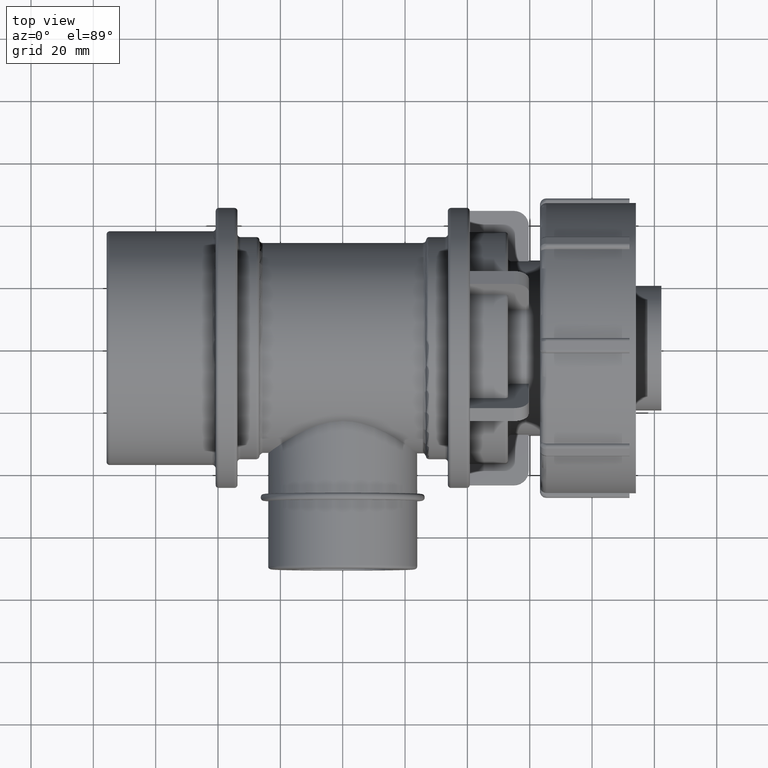
[diagram: clean part render]
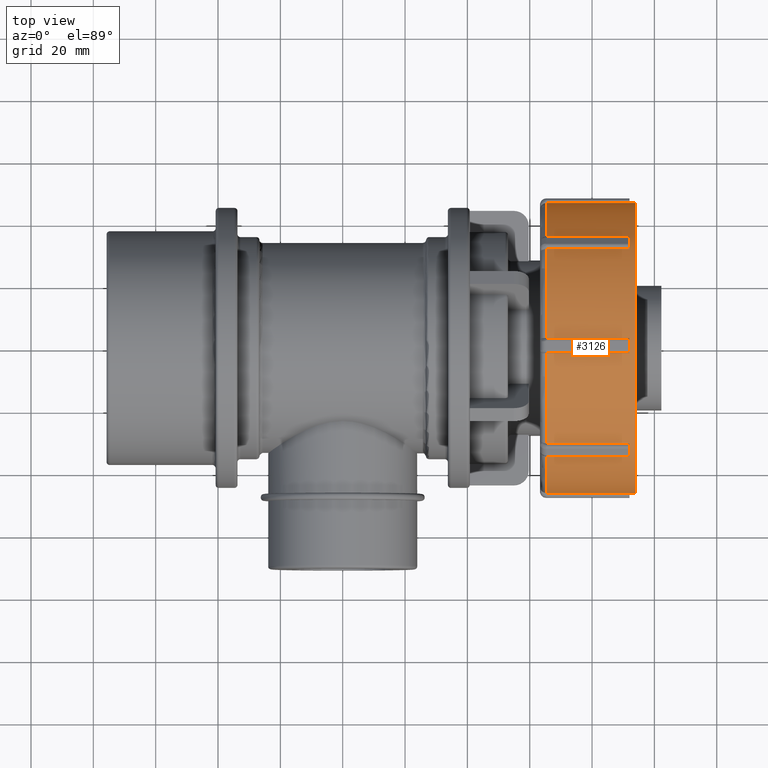
[diagram: same view with one face highlighted and labeled with its STEP entity id]
A machine part, top view. The second image highlights one B-rep face of the part: STEP entity #3126.
In plain terms, the highlighted cylindrical surface (bore or boss wall) has radius 46.56 mm, axis along (1, 0, 0).
Its self-contained STEP definition (entity closure, byte-faithful):
#33=LINE('',#4805,#215);
#65=LINE('',#4991,#247);
#74=LINE('',#5113,#256);
#83=LINE('',#5235,#265);
#92=LINE('',#5357,#274);
#101=LINE('',#5479,#283);
#110=LINE('',#5601,#292);
#116=LINE('',#5676,#298);
#117=LINE('',#5685,#299);
#118=LINE('',#5694,#300);
#119=LINE('',#5703,#301);
#120=LINE('',#5712,#302);
#121=LINE('',#5721,#303);
#122=LINE('',#5736,#304);
#123=LINE('',#5743,#305);
#124=LINE('',#5747,#306);
#215=VECTOR('',#3750,26.7);
#247=VECTOR('',#3846,26.7);
#256=VECTOR('',#3899,26.7);
#265=VECTOR('',#3952,26.7);
#274=VECTOR('',#4005,26.7);
#283=VECTOR('',#4058,26.7);
#292=VECTOR('',#4111,26.7);
#298=VECTOR('',#4145,26.7);
#299=VECTOR('',#4148,26.7);
#300=VECTOR('',#4151,26.7);
#301=VECTOR('',#4154,26.7);
#302=VECTOR('',#4157,26.7);
#303=VECTOR('',#4160,26.7);
#304=VECTOR('',#4175,26.7);
#305=VECTOR('',#4182,26.7);
#306=VECTOR('',#4185,26.7);
#548=CIRCLE('',#3296,46.56);
#572=CIRCLE('',#3328,46.56);
#587=CIRCLE('',#3350,46.56);
#602=CIRCLE('',#3372,46.56);
#617=CIRCLE('',#3394,46.56);
#632=CIRCLE('',#3416,46.56);
#647=CIRCLE('',#3438,46.56);
#654=CIRCLE('',#3463,46.56);
#655=CIRCLE('',#3464,46.56);
#656=CIRCLE('',#3465,46.56);
#657=CIRCLE('',#3466,46.56);
#658=CIRCLE('',#3467,46.56);
#659=CIRCLE('',#3468,46.56);
#660=CIRCLE('',#3469,46.56);
#661=CIRCLE('',#3470,46.56);
#662=CIRCLE('',#3471,46.56);
#663=CIRCLE('',#3472,46.56);
#769=FACE_BOUND('',#1163,.T.);
#919=FACE_OUTER_BOUND('',#1162,.T.);
#1162=EDGE_LOOP('',(#2548));
#1163=EDGE_LOOP('',(#2549,#2550,#2551,#2552,#2553,#2554,#2555,#2556,#2557,
#2558,#2559,#2560,#2561,#2562,#2563,#2564,#2565,#2566,#2567,#2568,#2569,
#2570,#2571,#2572,#2573,#2574,#2575,#2576,#2577,#2578,#2579,#2580));
#1374=VERTEX_POINT('',#4802);
#1375=VERTEX_POINT('',#4804);
#1378=VERTEX_POINT('',#4817);
#1422=VERTEX_POINT('',#4988);
#1423=VERTEX_POINT('',#4990);
#1426=VERTEX_POINT('',#5003);
#1439=VERTEX_POINT('',#5110);
#1440=VERTEX_POINT('',#5112);
#1443=VERTEX_POINT('',#5125);
#1456=VERTEX_POINT('',#5232);
#1457=VERTEX_POINT('',#5234);
#1460=VERTEX_POINT('',#5247);
#1473=VERTEX_POINT('',#5354);
#1474=VERTEX_POINT('',#5356);
#1477=VERTEX_POINT('',#5369);
#1490=VERTEX_POINT('',#5476);
#1491=VERTEX_POINT('',#5478);
#1494=VERTEX_POINT('',#5491);
#1507=VERTEX_POINT('',#5598);
#1508=VERTEX_POINT('',#5600);
#1511=VERTEX_POINT('',#5613);
#1517=VERTEX_POINT('',#5669);
#1518=VERTEX_POINT('',#5678);
#1519=VERTEX_POINT('',#5687);
#1520=VERTEX_POINT('',#5696);
#1521=VERTEX_POINT('',#5705);
#1522=VERTEX_POINT('',#5714);
#1523=VERTEX_POINT('',#5729);
#1524=VERTEX_POINT('',#5738);
#1525=VERTEX_POINT('',#5740);
#1526=VERTEX_POINT('',#5742);
#1527=VERTEX_POINT('',#5744);
#1528=VERTEX_POINT('',#5746);
#1672=EDGE_CURVE('',#1375,#1374,#33,.T.);
#1677=EDGE_CURVE('',#1374,#1378,#548,.T.);
#1733=EDGE_CURVE('',#1423,#1422,#65,.T.);
#1738=EDGE_CURVE('',#1422,#1426,#572,.T.);
#1762=EDGE_CURVE('',#1440,#1439,#74,.T.);
#1767=EDGE_CURVE('',#1439,#1443,#587,.T.);
#1791=EDGE_CURVE('',#1457,#1456,#83,.T.);
#1796=EDGE_CURVE('',#1456,#1460,#602,.T.);
#1820=EDGE_CURVE('',#1474,#1473,#92,.T.);
#1825=EDGE_CURVE('',#1473,#1477,#617,.T.);
#1849=EDGE_CURVE('',#1491,#1490,#101,.T.);
#1854=EDGE_CURVE('',#1490,#1494,#632,.T.);
#1878=EDGE_CURVE('',#1508,#1507,#110,.T.);
#1883=EDGE_CURVE('',#1507,#1511,#647,.T.);
#1896=EDGE_CURVE('',#1378,#1517,#116,.T.);
#1898=EDGE_CURVE('',#1426,#1518,#117,.T.);
#1900=EDGE_CURVE('',#1443,#1519,#118,.T.);
#1902=EDGE_CURVE('',#1460,#1520,#119,.T.);
#1904=EDGE_CURVE('',#1477,#1521,#120,.T.);
#1906=EDGE_CURVE('',#1494,#1522,#121,.T.);
#1908=EDGE_CURVE('',#1511,#1523,#122,.T.);
#1909=EDGE_CURVE('',#1524,#1524,#654,.T.);
#1910=EDGE_CURVE('',#1525,#1517,#655,.T.);
#1911=EDGE_CURVE('',#1525,#1526,#123,.T.);
#1912=EDGE_CURVE('',#1526,#1527,#656,.T.);
#1913=EDGE_CURVE('',#1527,#1528,#124,.T.);
#1914=EDGE_CURVE('',#1508,#1528,#657,.T.);
#1915=EDGE_CURVE('',#1491,#1523,#658,.T.);
#1916=EDGE_CURVE('',#1474,#1522,#659,.T.);
#1917=EDGE_CURVE('',#1457,#1521,#660,.T.);
#1918=EDGE_CURVE('',#1440,#1520,#661,.T.);
#1919=EDGE_CURVE('',#1423,#1519,#662,.T.);
#1920=EDGE_CURVE('',#1375,#1518,#663,.T.);
#2548=ORIENTED_EDGE('',*,*,#1909,.F.);
#2549=ORIENTED_EDGE('',*,*,#1672,.T.);
#2550=ORIENTED_EDGE('',*,*,#1677,.T.);
#2551=ORIENTED_EDGE('',*,*,#1896,.T.);
#2552=ORIENTED_EDGE('',*,*,#1910,.F.);
#2553=ORIENTED_EDGE('',*,*,#1911,.T.);
#2554=ORIENTED_EDGE('',*,*,#1912,.T.);
#2555=ORIENTED_EDGE('',*,*,#1913,.T.);
#2556=ORIENTED_EDGE('',*,*,#1914,.F.);
#2557=ORIENTED_EDGE('',*,*,#1878,.T.);
#2558=ORIENTED_EDGE('',*,*,#1883,.T.);
#2559=ORIENTED_EDGE('',*,*,#1908,.T.);
#2560=ORIENTED_EDGE('',*,*,#1915,.F.);
#2561=ORIENTED_EDGE('',*,*,#1849,.T.);
#2562=ORIENTED_EDGE('',*,*,#1854,.T.);
#2563=ORIENTED_EDGE('',*,*,#1906,.T.);
#2564=ORIENTED_EDGE('',*,*,#1916,.F.);
#2565=ORIENTED_EDGE('',*,*,#1820,.T.);
#2566=ORIENTED_EDGE('',*,*,#1825,.T.);
#2567=ORIENTED_EDGE('',*,*,#1904,.T.);
#2568=ORIENTED_EDGE('',*,*,#1917,.F.);
#2569=ORIENTED_EDGE('',*,*,#1791,.T.);
#2570=ORIENTED_EDGE('',*,*,#1796,.T.);
#2571=ORIENTED_EDGE('',*,*,#1902,.T.);
#2572=ORIENTED_EDGE('',*,*,#1918,.F.);
#2573=ORIENTED_EDGE('',*,*,#1762,.T.);
#2574=ORIENTED_EDGE('',*,*,#1767,.T.);
#2575=ORIENTED_EDGE('',*,*,#1900,.T.);
#2576=ORIENTED_EDGE('',*,*,#1919,.F.);
#2577=ORIENTED_EDGE('',*,*,#1733,.T.);
#2578=ORIENTED_EDGE('',*,*,#1738,.T.);
#2579=ORIENTED_EDGE('',*,*,#1898,.T.);
#2580=ORIENTED_EDGE('',*,*,#1920,.F.);
#2980=CYLINDRICAL_SURFACE('',#3462,46.56);
#3126=ADVANCED_FACE('',(#919,#769),#2980,.T.);
#3296=AXIS2_PLACEMENT_3D('',#4819,#3757,#3758);
#3328=AXIS2_PLACEMENT_3D('',#5005,#3853,#3854);
#3350=AXIS2_PLACEMENT_3D('',#5127,#3906,#3907);
#3372=AXIS2_PLACEMENT_3D('',#5249,#3959,#3960);
#3394=AXIS2_PLACEMENT_3D('',#5371,#4012,#4013);
#3416=AXIS2_PLACEMENT_3D('',#5493,#4065,#4066);
#3438=AXIS2_PLACEMENT_3D('',#5615,#4118,#4119);
#3462=AXIS2_PLACEMENT_3D('',#5737,#4176,#4177);
#3463=AXIS2_PLACEMENT_3D('',#5739,#4178,#4179);
#3464=AXIS2_PLACEMENT_3D('',#5741,#4180,#4181);
#3465=AXIS2_PLACEMENT_3D('',#5745,#4183,#4184);
#3466=AXIS2_PLACEMENT_3D('',#5748,#4186,#4187);
#3467=AXIS2_PLACEMENT_3D('',#5749,#4188,#4189);
#3468=AXIS2_PLACEMENT_3D('',#5750,#4190,#4191);
#3469=AXIS2_PLACEMENT_3D('',#5751,#4192,#4193);
#3470=AXIS2_PLACEMENT_3D('',#5752,#4194,#4195);
#3471=AXIS2_PLACEMENT_3D('',#5753,#4196,#4197);
#3472=AXIS2_PLACEMENT_3D('',#5754,#4198,#4199);
#3750=DIRECTION('',(1.,0.,0.));
#3757=DIRECTION('center_axis',(1.,0.,0.));
#3758=DIRECTION('ref_axis',(0.,1.,0.));
#3846=DIRECTION('',(1.,0.,0.));
#3853=DIRECTION('center_axis',(1.,0.,0.));
#3854=DIRECTION('ref_axis',(0.,1.,0.));
#3899=DIRECTION('',(1.,0.,0.));
#3906=DIRECTION('center_axis',(1.,0.,0.));
#3907=DIRECTION('ref_axis',(0.,1.,0.));
#3952=DIRECTION('',(1.,0.,0.));
#3959=DIRECTION('center_axis',(1.,0.,0.));
#3960=DIRECTION('ref_axis',(0.,1.,0.));
#4005=DIRECTION('',(1.,0.,0.));
#4012=DIRECTION('center_axis',(1.,0.,0.));
#4013=DIRECTION('ref_axis',(0.,1.,0.));
#4058=DIRECTION('',(1.,0.,0.));
#4065=DIRECTION('center_axis',(1.,0.,0.));
#4066=DIRECTION('ref_axis',(0.,1.,0.));
#4111=DIRECTION('',(1.,0.,0.));
#4118=DIRECTION('center_axis',(1.,0.,0.));
#4119=DIRECTION('ref_axis',(0.,1.,0.));
#4145=DIRECTION('',(-1.,0.,0.));
#4148=DIRECTION('',(-1.,0.,0.));
#4151=DIRECTION('',(-1.,0.,0.));
#4154=DIRECTION('',(-1.,0.,0.));
#4157=DIRECTION('',(-1.,0.,0.));
#4160=DIRECTION('',(-1.,0.,0.));
#4175=DIRECTION('',(-1.,0.,0.));
#4176=DIRECTION('center_axis',(1.,0.,0.));
#4177=DIRECTION('ref_axis',(0.,1.,0.));
#4178=DIRECTION('center_axis',(1.,0.,0.));
#4179=DIRECTION('ref_axis',(0.,0.,-1.));
#4180=DIRECTION('center_axis',(-1.,0.,0.));
#4181=DIRECTION('ref_axis',(0.,-1.,1.83697019872103E-16));
#4182=DIRECTION('',(1.,0.,0.));
#4183=DIRECTION('center_axis',(1.,0.,0.));
#4184=DIRECTION('ref_axis',(0.,1.,0.));
#4185=DIRECTION('',(-1.,0.,0.));
#4186=DIRECTION('center_axis',(-1.,0.,0.));
#4187=DIRECTION('ref_axis',(0.,-1.,1.83697019872103E-16));
#4188=DIRECTION('center_axis',(-1.,0.,0.));
#4189=DIRECTION('ref_axis',(0.,-1.,1.83697019872103E-16));
#4190=DIRECTION('center_axis',(-1.,0.,0.));
#4191=DIRECTION('ref_axis',(0.,-1.,1.83697019872103E-16));
#4192=DIRECTION('center_axis',(-1.,0.,0.));
#4193=DIRECTION('ref_axis',(0.,-1.,1.83697019872103E-16));
#4194=DIRECTION('center_axis',(-1.,0.,0.));
#4195=DIRECTION('ref_axis',(0.,-1.,1.83697019872103E-16));
#4196=DIRECTION('center_axis',(-1.,0.,0.));
#4197=DIRECTION('ref_axis',(0.,-1.,1.83697019872103E-16));
#4198=DIRECTION('center_axis',(-1.,0.,0.));
#4199=DIRECTION('ref_axis',(0.,-1.,1.83697019872103E-16));
#4802=CARTESIAN_POINT('',(92.,31.1820678010762,-34.5761803507717));
#4804=CARTESIAN_POINT('',(65.3,31.1820678010762,-34.5761803507717));
#4805=CARTESIAN_POINT('',(78.675,31.1820678010762,-34.5761803507717));
#4817=CARTESIAN_POINT('',(92.,34.5761803507716,-31.1820678010762));
#4819=CARTESIAN_POINT('Origin',(92.,0.,0.));
#4988=CARTESIAN_POINT('',(92.,-2.4,-46.4981031871194));
#4990=CARTESIAN_POINT('',(65.3,-2.4,-46.4981031871194));
#4991=CARTESIAN_POINT('',(78.675,-2.4,-46.4981031871194));
#5003=CARTESIAN_POINT('',(92.,2.39999999999999,-46.4981031871194));
#5005=CARTESIAN_POINT('Origin',(92.,0.,0.));
#5110=CARTESIAN_POINT('',(92.,-34.5761803507717,-31.1820678010762));
#5112=CARTESIAN_POINT('',(65.3,-34.5761803507717,-31.1820678010762));
#5113=CARTESIAN_POINT('',(78.675,-34.5761803507717,-31.1820678010762));
#5125=CARTESIAN_POINT('',(92.,-31.1820678010762,-34.5761803507716));
#5127=CARTESIAN_POINT('Origin',(92.,0.,0.));
#5232=CARTESIAN_POINT('',(92.,-46.4981031871194,2.4));
#5234=CARTESIAN_POINT('',(65.3,-46.4981031871194,2.4));
#5235=CARTESIAN_POINT('',(78.675,-46.4981031871194,2.4));
#5247=CARTESIAN_POINT('',(92.,-46.4981031871194,-2.39999999999999));
#5249=CARTESIAN_POINT('Origin',(92.,0.,0.));
#5354=CARTESIAN_POINT('',(92.,-31.1820678010762,34.5761803507716));
#5356=CARTESIAN_POINT('',(65.3,-31.1820678010762,34.5761803507716));
#5357=CARTESIAN_POINT('',(78.675,-31.1820678010762,34.5761803507716));
#5369=CARTESIAN_POINT('',(92.,-34.5761803507716,31.1820678010762));
#5371=CARTESIAN_POINT('Origin',(92.,0.,0.));
#5476=CARTESIAN_POINT('',(92.,2.4,46.4981031871194));
#5478=CARTESIAN_POINT('',(65.3,2.4,46.4981031871194));
#5479=CARTESIAN_POINT('',(78.675,2.4,46.4981031871194));
#5491=CARTESIAN_POINT('',(92.,-2.4,46.4981031871194));
#5493=CARTESIAN_POINT('Origin',(92.,0.,0.));
#5598=CARTESIAN_POINT('',(92.,34.5761803507716,31.1820678010762));
#5600=CARTESIAN_POINT('',(65.3,34.5761803507716,31.1820678010762));
#5601=CARTESIAN_POINT('',(78.675,34.5761803507716,31.1820678010762));
#5613=CARTESIAN_POINT('',(92.,31.1820678010762,34.5761803507716));
#5615=CARTESIAN_POINT('Origin',(92.,0.,0.));
#5669=CARTESIAN_POINT('',(65.3,34.5761803507716,-31.1820678010762));
#5676=CARTESIAN_POINT('',(78.675,34.5761803507716,-31.1820678010762));
#5678=CARTESIAN_POINT('',(65.3,2.39999999999999,-46.4981031871194));
#5685=CARTESIAN_POINT('',(78.675,2.39999999999999,-46.4981031871194));
#5687=CARTESIAN_POINT('',(65.3,-31.1820678010762,-34.5761803507716));
#5694=CARTESIAN_POINT('',(78.675,-31.1820678010762,-34.5761803507716));
#5696=CARTESIAN_POINT('',(65.3,-46.4981031871194,-2.39999999999999));
#5703=CARTESIAN_POINT('',(78.675,-46.4981031871194,-2.39999999999999));
#5705=CARTESIAN_POINT('',(65.3,-34.5761803507716,31.1820678010762));
#5712=CARTESIAN_POINT('',(78.675,-34.5761803507716,31.1820678010762));
#5714=CARTESIAN_POINT('',(65.3,-2.4,46.4981031871194));
#5721=CARTESIAN_POINT('',(78.675,-2.4,46.4981031871194));
#5729=CARTESIAN_POINT('',(65.3,31.1820678010762,34.5761803507716));
#5736=CARTESIAN_POINT('',(78.675,31.1820678010762,34.5761803507716));
#5737=CARTESIAN_POINT('Origin',(78.675,0.,0.));
#5738=CARTESIAN_POINT('',(94.05,46.56,0.));
#5739=CARTESIAN_POINT('Origin',(94.05,0.,0.));
#5740=CARTESIAN_POINT('',(65.3,46.4981031871194,-2.4));
#5741=CARTESIAN_POINT('Origin',(65.3,0.,0.));
#5742=CARTESIAN_POINT('',(92.,46.4981031871194,-2.4));
#5743=CARTESIAN_POINT('',(78.675,46.4981031871194,-2.4));
#5744=CARTESIAN_POINT('',(92.,46.4981031871194,2.4));
#5745=CARTESIAN_POINT('Origin',(92.,0.,0.));
#5746=CARTESIAN_POINT('',(65.3,46.4981031871194,2.4));
#5747=CARTESIAN_POINT('',(78.675,46.4981031871194,2.4));
#5748=CARTESIAN_POINT('Origin',(65.3,0.,0.));
#5749=CARTESIAN_POINT('Origin',(65.3,0.,0.));
#5750=CARTESIAN_POINT('Origin',(65.3,0.,0.));
#5751=CARTESIAN_POINT('Origin',(65.3,0.,0.));
#5752=CARTESIAN_POINT('Origin',(65.3,0.,0.));
#5753=CARTESIAN_POINT('Origin',(65.3,0.,0.));
#5754=CARTESIAN_POINT('Origin',(65.3,0.,0.));